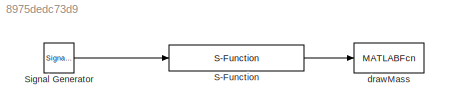
MODEL slx_8975dedc73d9
KIND model
CONFIG AbsTol = auto
CONFIG EnableMultiTasking = off
CONFIG FixedStep = auto
CONFIG InitFcn = mass_spring_damper_param
CONFIG MaxStep = 0.1
CONFIG MinStep = auto
CONFIG RelTol = 1e-3
CONFIG SampleTimeConstraint = Unconstrained
CONFIG Solver = ode45
CONFIG SolverName = ode45
CONFIG StartTime = 0.0
CONFIG StopTime = 10000
BLOCK [S-Function] S-Function
  EnableBusSupport = off
  FunctionName = mass_spring_damper_dynamics
  Parameters = P
  Ports = [1, 1]
  SFcnIsStateOwnerBlock = off
  SFunctionDeploymentMode = off
BLOCK [SignalGenerator] Signal Generator
  Amplitude = 5
  Frequency = 2
  Ports = [0, 1]
  Units = rad/sec
BLOCK [MATLABFcn] drawMass
  MATLABFcn = mass_spring_damper_animation(u)
  OutputDimensions = 0
  Ports = [1]
LINE S-Function:1 -> drawMass:1
LINE Signal Generator:1 -> S-Function:1
